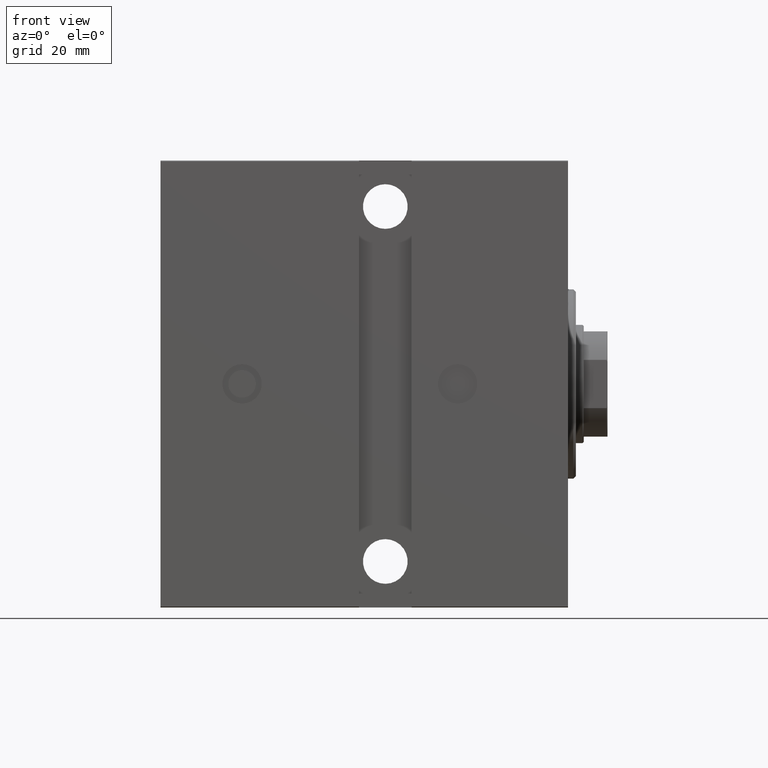
[diagram: clean part render]
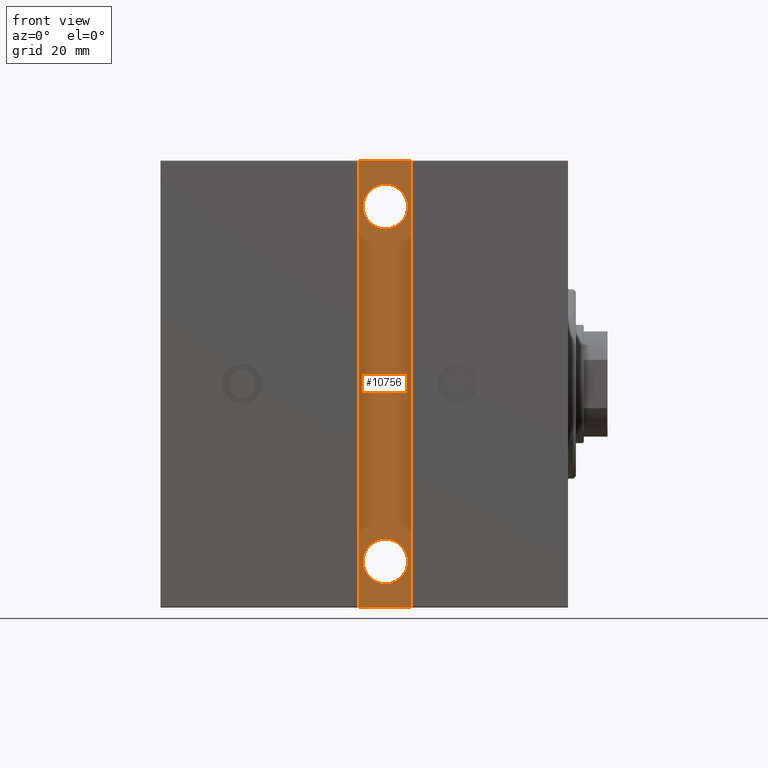
[diagram: same view with one face highlighted and labeled with its STEP entity id]
A machine part, front view. The second image highlights one B-rep face of the part: STEP entity #10756.
In plain terms, the highlighted planar face has unit normal (0, 1, 0).
Its self-contained STEP definition (entity closure, byte-faithful):
#1010 = PLANE ( 'NONE',  #14712 ) ;
#2516 = LINE ( 'NONE', #15666, #10633 ) ;
#3738 = CIRCLE ( 'NONE', #33281, 8.500000000000007105 ) ;
#4220 = DIRECTION ( 'NONE',  ( 0.000000000000000000, -1.000000000000000000, 0.000000000000000000 ) ) ;
#4708 = VERTEX_POINT ( 'NONE', #25211 ) ;
#5471 = ORIENTED_EDGE ( 'NONE', *, *, #34816, .T. ) ;
#5744 = VERTEX_POINT ( 'NONE', #11332 ) ;
#5974 = CARTESIAN_POINT ( 'NONE',  ( 59.50000000000000000, 65.00000000000002842, -85.00000000000000000 ) ) ;
#6349 = EDGE_CURVE ( 'NONE', #4708, #34104, #8167, .T. ) ;
#6708 = CIRCLE ( 'NONE', #37736, 8.500000000000014211 ) ;
#7061 = EDGE_LOOP ( 'NONE', ( #36397, #13161 ) ) ;
#7732 = DIRECTION ( 'NONE',  ( -1.000000000000000000, 0.000000000000000000, 0.000000000000000000 ) ) ;
#8032 = DIRECTION ( 'NONE',  ( 0.000000000000000000, -1.000000000000000000, 0.000000000000000000 ) ) ;
#8167 = LINE ( 'NONE', #24699, #25629 ) ;
#10297 = FACE_BOUND ( 'NONE', #7061, .T. ) ;
#10299 = CARTESIAN_POINT ( 'NONE',  ( 69.50000000000002842, 65.00000000000002842, -67.50000000000000000 ) ) ;
#10487 = ORIENTED_EDGE ( 'NONE', *, *, #39803, .T. ) ;
#10633 = VECTOR ( 'NONE', #28766, 1000.000000000000000 ) ;
#10756 = ADVANCED_FACE ( 'NONE', ( #27251, #10297, #30476 ), #1010, .F. ) ;
#10927 = DIRECTION ( 'NONE',  ( 0.000000000000000000, 0.000000000000000000, -1.000000000000000000 ) ) ;
#10997 = CARTESIAN_POINT ( 'NONE',  ( 79.50000000000004263, 65.00000000000002842, 84.99999999999995737 ) ) ;
#11332 = CARTESIAN_POINT ( 'NONE',  ( 59.50000000000001421, 65.00000000000002842, 84.99999999999995737 ) ) ;
#11703 = ORIENTED_EDGE ( 'NONE', *, *, #26969, .T. ) ;
#13161 = ORIENTED_EDGE ( 'NONE', *, *, #41594, .T. ) ;
#13747 = VERTEX_POINT ( 'NONE', #33187 ) ;
#13930 = VECTOR ( 'NONE', #19302, 1000.000000000000000 ) ;
#14548 = CARTESIAN_POINT ( 'NONE',  ( 69.50000000000002842, 65.00000000000002842, 67.50000000000000000 ) ) ;
#14712 = AXIS2_PLACEMENT_3D ( 'NONE', #16754, #4220, #30265 ) ;
#15021 = DIRECTION ( 'NONE',  ( 0.000000000000000000, -1.000000000000000000, 0.000000000000000000 ) ) ;
#15666 = CARTESIAN_POINT ( 'NONE',  ( 79.50000000000001421, 65.00000000000002842, -85.00000000000000000 ) ) ;
#16754 = CARTESIAN_POINT ( 'NONE',  ( 0.000000000000000000, 65.00000000000002842, 0.000000000000000000 ) ) ;
#19164 = CARTESIAN_POINT ( 'NONE',  ( 79.50000000000004263, 65.00000000000002842, 84.99999999999995737 ) ) ;
#19302 = DIRECTION ( 'NONE',  ( 8.163404592832035198E-17, 0.000000000000000000, 1.000000000000000000 ) ) ;
#19881 = EDGE_LOOP ( 'NONE', ( #41729, #36121 ) ) ;
#20795 = CIRCLE ( 'NONE', #22856, 8.500000000000014211 ) ;
#21463 = CARTESIAN_POINT ( 'NONE',  ( 69.50000000000002842, 65.00000000000002842, 67.50000000000000000 ) ) ;
#22856 = AXIS2_PLACEMENT_3D ( 'NONE', #21463, #15021, #41502 ) ;
#23151 = LINE ( 'NONE', #5974, #13930 ) ;
#23321 = VECTOR ( 'NONE', #32079, 1000.000000000000000 ) ;
#24122 = EDGE_LOOP ( 'NONE', ( #5471, #11703, #10487, #24831 ) ) ;
#24438 = CARTESIAN_POINT ( 'NONE',  ( 69.50000000000002842, 65.00000000000002842, 58.99999999999999289 ) ) ;
#24699 = CARTESIAN_POINT ( 'NONE',  ( 79.50000000000001421, 65.00000000000002842, -85.00000000000000000 ) ) ;
#24831 = ORIENTED_EDGE ( 'NONE', *, *, #6349, .T. ) ;
#25211 = CARTESIAN_POINT ( 'NONE',  ( 79.50000000000004263, 65.00000000000001421, -85.00000000000000000 ) ) ;
#25629 = VECTOR ( 'NONE', #7732, 1000.000000000000000 ) ;
#25749 = CIRCLE ( 'NONE', #38868, 8.500000000000007105 ) ;
#25811 = LINE ( 'NONE', #19164, #23321 ) ;
#26024 = EDGE_CURVE ( 'NONE', #35403, #26046, #6708, .T. ) ;
#26046 = VERTEX_POINT ( 'NONE', #24438 ) ;
#26890 = VERTEX_POINT ( 'NONE', #10997 ) ;
#26969 = EDGE_CURVE ( 'NONE', #5744, #26890, #25811, .T. ) ;
#27251 = FACE_BOUND ( 'NONE', #19881, .T. ) ;
#28766 = DIRECTION ( 'NONE',  ( -1.632680918566407040E-16, -0.000000000000000000, -1.000000000000000000 ) ) ;
#29501 = CARTESIAN_POINT ( 'NONE',  ( 69.50000000000002842, 65.00000000000002842, 76.00000000000001421 ) ) ;
#30256 = DIRECTION ( 'NONE',  ( 0.000000000000000000, -1.000000000000000000, 0.000000000000000000 ) ) ;
#30265 = DIRECTION ( 'NONE',  ( 0.000000000000000000, -0.000000000000000000, -1.000000000000000000 ) ) ;
#30269 = CARTESIAN_POINT ( 'NONE',  ( 59.50000000000000000, 65.00000000000002842, -85.00000000000000000 ) ) ;
#30476 = FACE_OUTER_BOUND ( 'NONE', #24122, .T. ) ;
#31242 = CARTESIAN_POINT ( 'NONE',  ( 69.50000000000002842, 65.00000000000002842, -67.50000000000000000 ) ) ;
#32079 = DIRECTION ( 'NONE',  ( 1.000000000000000000, -0.000000000000000000, -0.000000000000000000 ) ) ;
#33187 = CARTESIAN_POINT ( 'NONE',  ( 69.50000000000002842, 65.00000000000002842, -76.00000000000001421 ) ) ;
#33281 = AXIS2_PLACEMENT_3D ( 'NONE', #10299, #36542, #10927 ) ;
#33920 = DIRECTION ( 'NONE',  ( 0.000000000000000000, 0.000000000000000000, -1.000000000000000000 ) ) ;
#34043 = VERTEX_POINT ( 'NONE', #35061 ) ;
#34057 = DIRECTION ( 'NONE',  ( 0.000000000000000000, 0.000000000000000000, -1.000000000000000000 ) ) ;
#34104 = VERTEX_POINT ( 'NONE', #30269 ) ;
#34702 = EDGE_CURVE ( 'NONE', #26046, #35403, #20795, .T. ) ;
#34816 = EDGE_CURVE ( 'NONE', #34104, #5744, #23151, .T. ) ;
#35061 = CARTESIAN_POINT ( 'NONE',  ( 69.50000000000002842, 65.00000000000002842, -58.99999999999999289 ) ) ;
#35403 = VERTEX_POINT ( 'NONE', #29501 ) ;
#36121 = ORIENTED_EDGE ( 'NONE', *, *, #34702, .T. ) ;
#36397 = ORIENTED_EDGE ( 'NONE', *, *, #39974, .T. ) ;
#36542 = DIRECTION ( 'NONE',  ( 0.000000000000000000, -1.000000000000000000, 0.000000000000000000 ) ) ;
#37736 = AXIS2_PLACEMENT_3D ( 'NONE', #14548, #30256, #33920 ) ;
#38868 = AXIS2_PLACEMENT_3D ( 'NONE', #31242, #8032, #34057 ) ;
#39803 = EDGE_CURVE ( 'NONE', #26890, #4708, #2516, .T. ) ;
#39974 = EDGE_CURVE ( 'NONE', #34043, #13747, #3738, .T. ) ;
#41502 = DIRECTION ( 'NONE',  ( 0.000000000000000000, 0.000000000000000000, -1.000000000000000000 ) ) ;
#41594 = EDGE_CURVE ( 'NONE', #13747, #34043, #25749, .T. ) ;
#41729 = ORIENTED_EDGE ( 'NONE', *, *, #26024, .T. ) ;